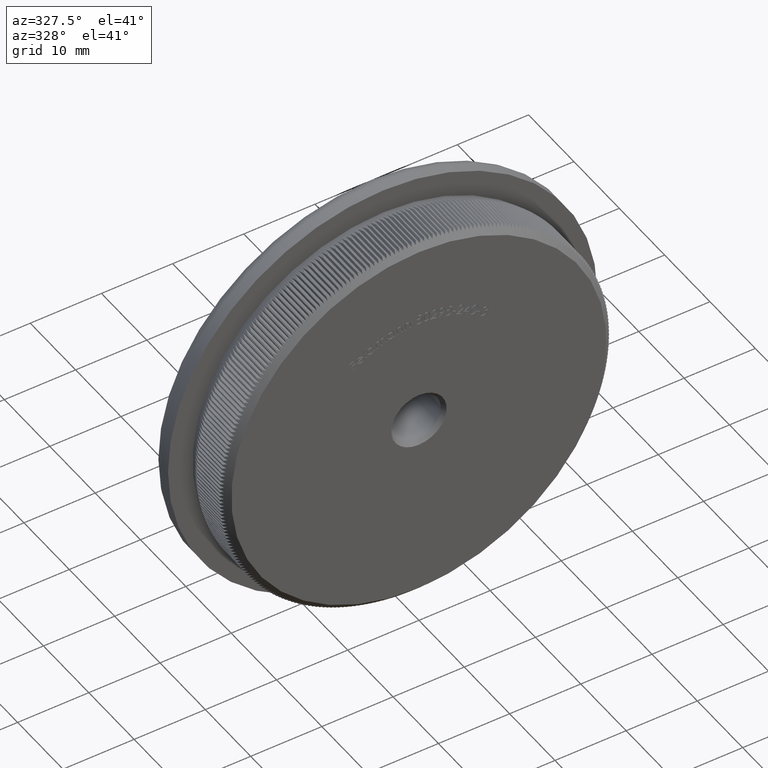
[diagram: clean part render]
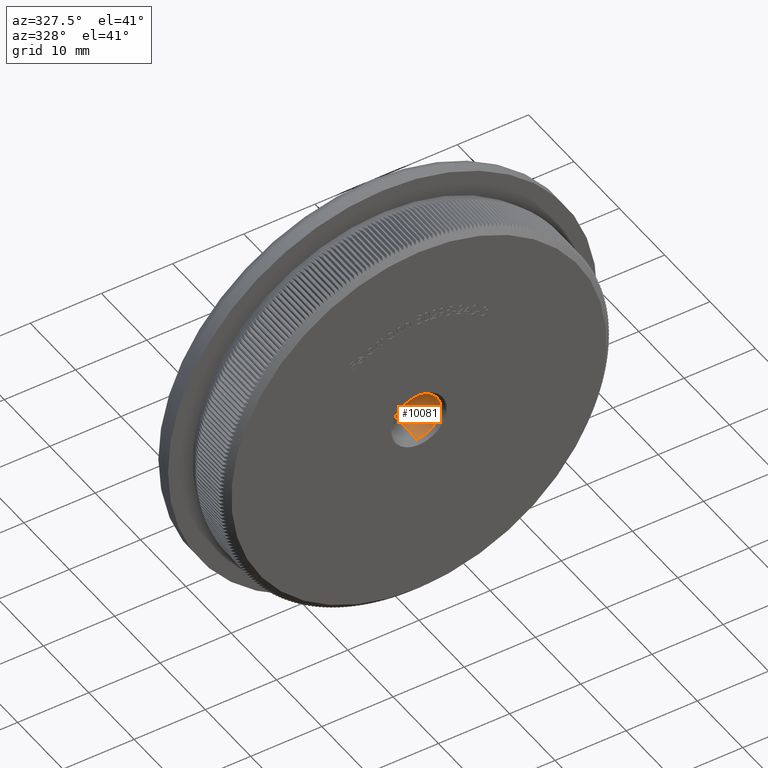
[diagram: same view with one face highlighted and labeled with its STEP entity id]
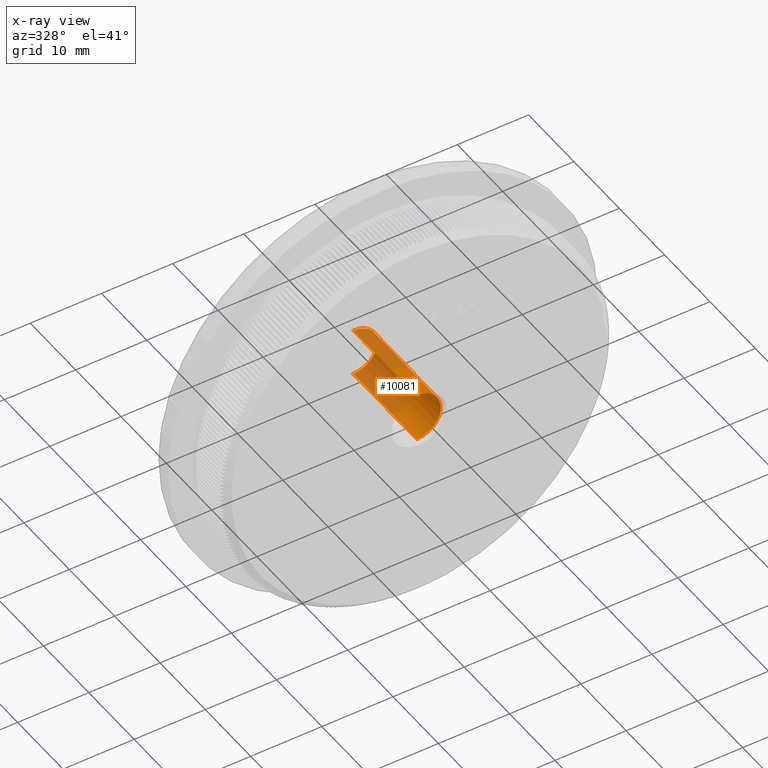
[diagram: x-ray of the same camera — body ghosted, the highlighted face saturated]
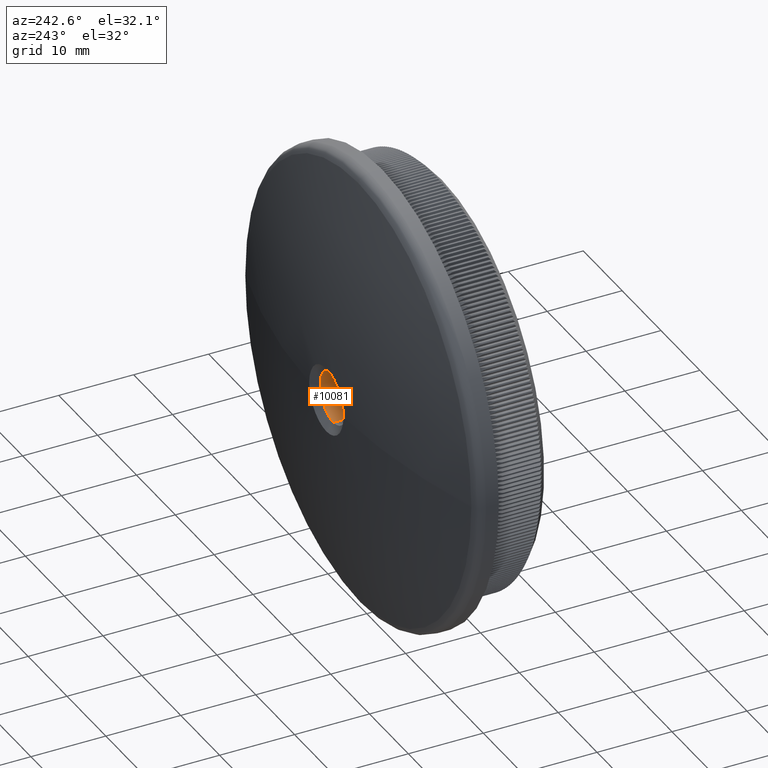
[diagram: same view with one face highlighted and labeled with its STEP entity id]
A machine part, auxiliary view. The second image highlights one B-rep face of the part: STEP entity #10081.
The next image is the same camera in x-ray: the body ghosted, the highlighted face saturated — about 57% of this face is hidden behind the body in this view.
A second angle (auxiliary view) of the same face is appended — the face is thin or edge-on in the first view.
In plain terms, the highlighted cylindrical surface (edge-blend (fillet) strip) has radius 3.4 mm, axis along (-0, -1, -0).
Its self-contained STEP definition (entity closure, byte-faithful):
#1294 = EDGE_CURVE ( 'NONE', #28195, #11642, #10554, .T. ) ;
#1308 = VECTOR ( 'NONE', #21833, 1000.000000000000000 ) ;
#2016 = ORIENTED_EDGE ( 'NONE', *, *, #25000, .T. ) ;
#2565 = CYLINDRICAL_SURFACE ( 'NONE', #13156, 3.399999999999995470 ) ;
#3309 = VECTOR ( 'NONE', #28366, 1000.000000000000000 ) ;
#5905 = CARTESIAN_POINT ( 'NONE',  ( 0.000000000000000000, 0.4999999999999822364, 0.000000000000000000 ) ) ;
#6385 = DIRECTION ( 'NONE',  ( 0.000000000000000000, 0.000000000000000000, 1.000000000000000000 ) ) ;
#7969 = FACE_OUTER_BOUND ( 'NONE', #11613, .T. ) ;
#10081 = ADVANCED_FACE ( 'NONE', ( #7969 ), #2565, .F. ) ;
#10554 = LINE ( 'NONE', #21678, #1308 ) ;
#10792 = CARTESIAN_POINT ( 'NONE',  ( 0.000000000000000000, 0.000000000000000000, -3.399999999999995470 ) ) ;
#11613 = EDGE_LOOP ( 'NONE', ( #41082, #2016, #13082, #12788 ) ) ;
#11642 = VERTEX_POINT ( 'NONE', #22256 ) ;
#12788 = ORIENTED_EDGE ( 'NONE', *, *, #34946, .T. ) ;
#13082 = ORIENTED_EDGE ( 'NONE', *, *, #33109, .T. ) ;
#13156 = AXIS2_PLACEMENT_3D ( 'NONE', #26961, #23746, #16397 ) ;
#16397 = DIRECTION ( 'NONE',  ( 0.000000000000000000, 0.000000000000000000, -1.000000000000000000 ) ) ;
#17040 = VERTEX_POINT ( 'NONE', #43873 ) ;
#21678 = CARTESIAN_POINT ( 'NONE',  ( 4.163799117100995629E-16, 0.000000000000000000, 3.399999999999995470 ) ) ;
#21833 = DIRECTION ( 'NONE',  ( -0.000000000000000000, -1.000000000000000000, -0.000000000000000000 ) ) ;
#22256 = CARTESIAN_POINT ( 'NONE',  ( 4.163799117100995629E-16, 0.4999999999999822364, 3.399999999999995470 ) ) ;
#22326 = CIRCLE ( 'NONE', #29238, 3.399999999999995470 ) ;
#23486 = DIRECTION ( 'NONE',  ( 0.000000000000000000, 0.000000000000000000, -1.000000000000000000 ) ) ;
#23746 = DIRECTION ( 'NONE',  ( -0.000000000000000000, -1.000000000000000000, -0.000000000000000000 ) ) ;
#25000 = EDGE_CURVE ( 'NONE', #28195, #25089, #26061, .T. ) ;
#25089 = VERTEX_POINT ( 'NONE', #34928 ) ;
#26061 = CIRCLE ( 'NONE', #27830, 3.399999999999995470 ) ;
#26961 = CARTESIAN_POINT ( 'NONE',  ( 0.000000000000000000, 0.000000000000000000, 0.000000000000000000 ) ) ;
#27830 = AXIS2_PLACEMENT_3D ( 'NONE', #38125, #30820, #6385 ) ;
#28195 = VERTEX_POINT ( 'NONE', #39374 ) ;
#28366 = DIRECTION ( 'NONE',  ( -0.000000000000000000, -1.000000000000000000, -0.000000000000000000 ) ) ;
#29238 = AXIS2_PLACEMENT_3D ( 'NONE', #5905, #44385, #23486 ) ;
#30820 = DIRECTION ( 'NONE',  ( 0.000000000000000000, 1.000000000000000000, 0.000000000000000000 ) ) ;
#31173 = LINE ( 'NONE', #10792, #3309 ) ;
#33109 = EDGE_CURVE ( 'NONE', #25089, #17040, #31173, .T. ) ;
#34928 = CARTESIAN_POINT ( 'NONE',  ( 0.000000000000000000, 14.47426544225188749, -3.399999999999995470 ) ) ;
#34946 = EDGE_CURVE ( 'NONE', #17040, #11642, #22326, .T. ) ;
#38125 = CARTESIAN_POINT ( 'NONE',  ( 0.000000000000000000, 14.47426544225188749, 0.000000000000000000 ) ) ;
#39374 = CARTESIAN_POINT ( 'NONE',  ( 4.163799117100995629E-16, 14.47426544225188749, 3.399999999999995470 ) ) ;
#41082 = ORIENTED_EDGE ( 'NONE', *, *, #1294, .F. ) ;
#43873 = CARTESIAN_POINT ( 'NONE',  ( 0.000000000000000000, 0.4999999999999822364, -3.399999999999995470 ) ) ;
#44385 = DIRECTION ( 'NONE',  ( 0.000000000000000000, -1.000000000000000000, 0.000000000000000000 ) ) ;